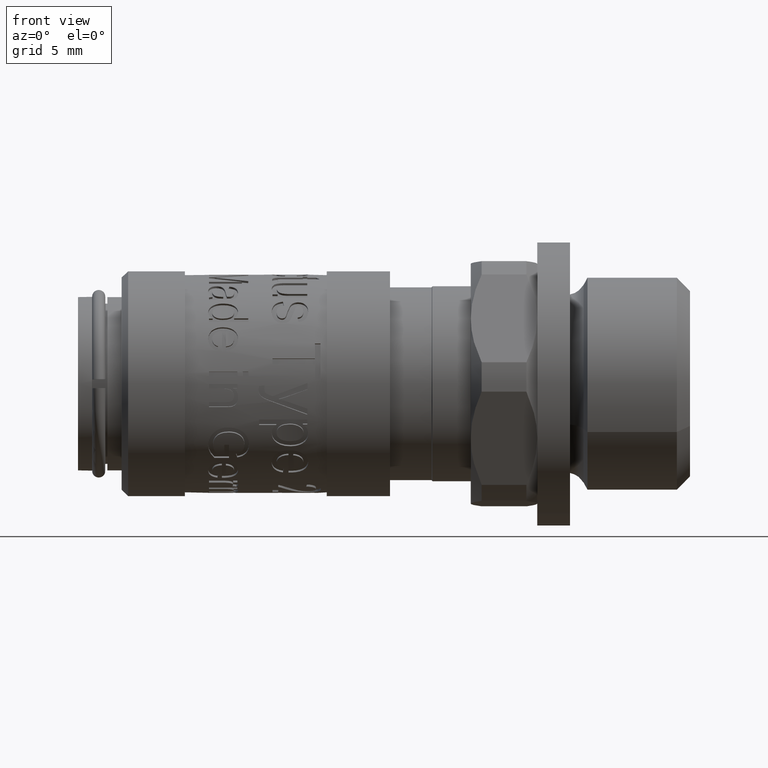
[diagram: clean part render]
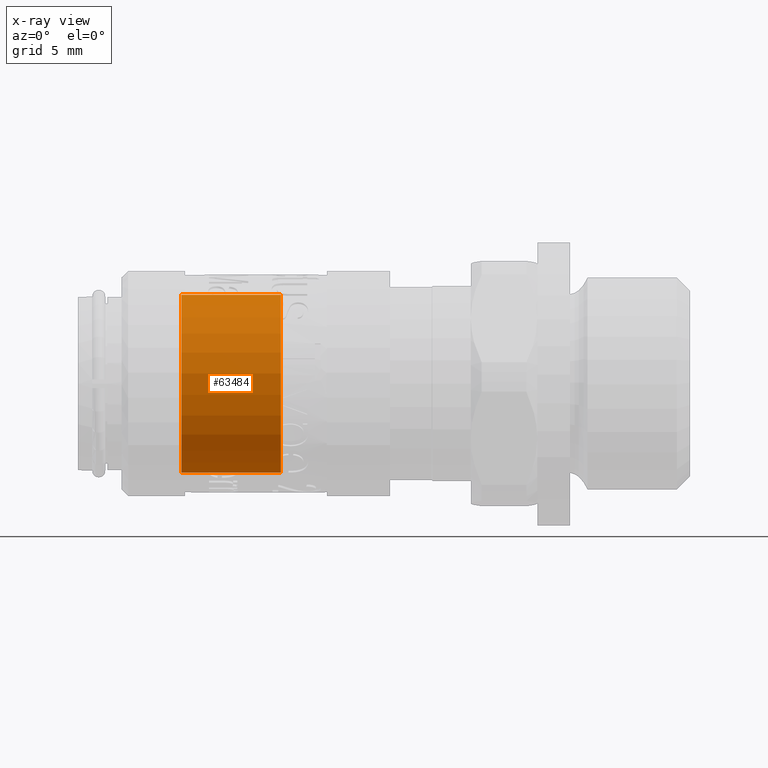
[diagram: x-ray — body ghosted, one internal face saturated and labeled with its STEP entity id]
A machine part, front view, then the same camera in x-ray: the body is ghosted and one INTERNAL B-rep face — a face not visible from any outside direction — is saturated and labeled: STEP entity #63484.
In plain terms, the highlighted cylindrical surface (bore or boss wall) has radius 4.075 mm, axis along (1, 0, 0).
Its self-contained STEP definition (entity closure, byte-faithful):
#63453=CARTESIAN_POINT('',(9.300000000000001,4.042810725378679,0.511181414727806));
#63454=VERTEX_POINT('',#63453);
#63455=CARTESIAN_POINT('',(9.300000000000001,0.0,0.0));
#63456=DIRECTION('',(1.0,0.0,0.0));
#63457=DIRECTION('',(0.0,0.99210079150397,0.125443291957744));
#63458=AXIS2_PLACEMENT_3D('',#63455,#63456,#63457);
#63459=CIRCLE('',#63458,4.075);
#63460=EDGE_CURVE('',#63454,#63454,#63459,.T.);
#63465=CARTESIAN_POINT('',(7.019337567297407,0.0,0.0));
#63466=DIRECTION('',(1.0,0.0,0.0));
#63467=DIRECTION('',(0.0,0.99210079150397,0.125443291957744));
#63468=AXIS2_PLACEMENT_3D('',#63465,#63466,#63467);
#63469=CYLINDRICAL_SURFACE('',#63468,4.075);
#63470=CARTESIAN_POINT('',(4.738675134594813,4.042810725378679,0.511181414727805));
#63471=VERTEX_POINT('',#63470);
#63472=CARTESIAN_POINT('',(4.738675134594813,0.0,0.0));
#63473=DIRECTION('',(1.0,0.0,0.0));
#63474=DIRECTION('',(0.0,0.99210079150397,0.125443291957744));
#63475=AXIS2_PLACEMENT_3D('',#63472,#63473,#63474);
#63476=CIRCLE('',#63475,4.075);
#63477=EDGE_CURVE('',#63471,#63471,#63476,.T.);
#63478=ORIENTED_EDGE('',*,*,#63477,.F.);
#63479=EDGE_LOOP('',(#63478));
#63480=FACE_OUTER_BOUND('',#63479,.T.);
#63481=ORIENTED_EDGE('',*,*,#63460,.T.);
#63482=EDGE_LOOP('',(#63481));
#63483=FACE_BOUND('',#63482,.T.);
#63484=ADVANCED_FACE('',(#63480,#63483),#63469,.F.);